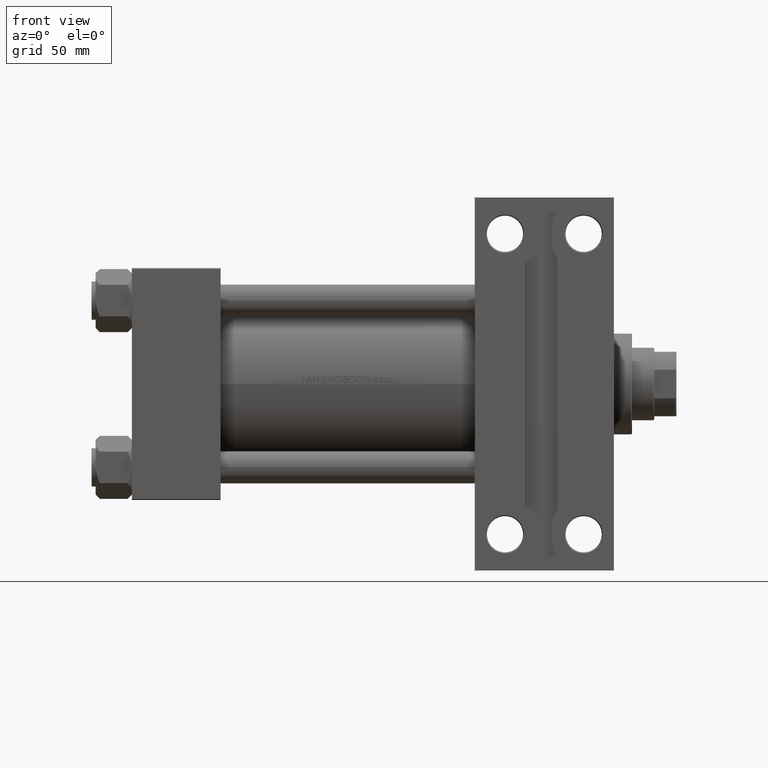
[diagram: clean part render]
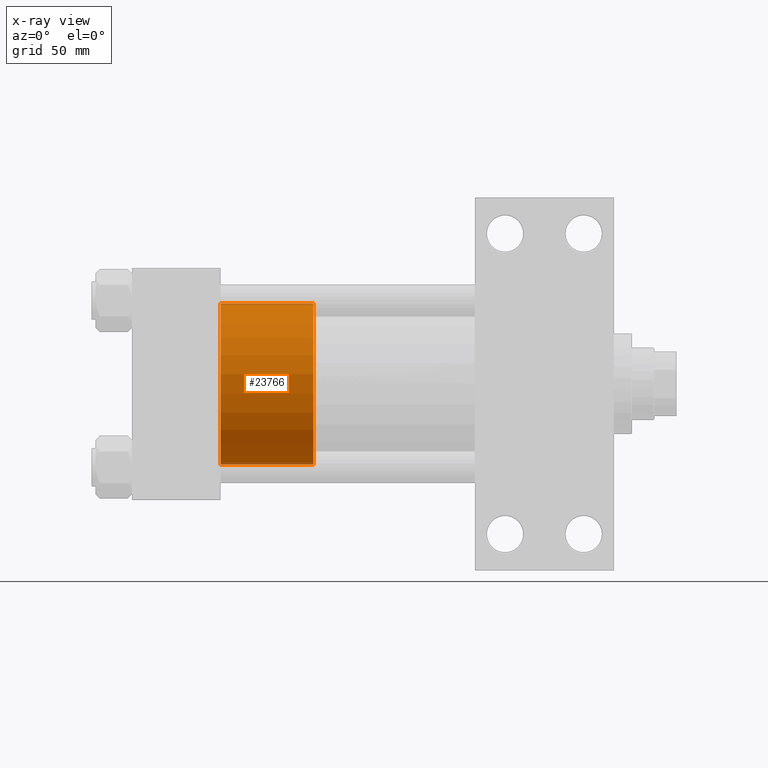
[diagram: x-ray — body ghosted, one internal face saturated and labeled with its STEP entity id]
A machine part, front view, then the same camera in x-ray: the body is ghosted and one INTERNAL B-rep face — a face not visible from any outside direction — is saturated and labeled: STEP entity #23766.
In plain terms, the highlighted cylindrical surface (partial cylindrical patch) has radius 40 mm, axis along (-1, 0, 0).
Its self-contained STEP definition (entity closure, byte-faithful):
#499 = DIRECTION ( 'NONE',  ( 0.000000000000000000, 0.000000000000000000, 1.000000000000000000 ) ) ;
#1212 = VERTEX_POINT ( 'NONE', #25308 ) ;
#2732 = CARTESIAN_POINT ( 'NONE',  ( 0.000000000000000000, 0.000000000000000000, 46.00000000000000000 ) ) ;
#4445 = CARTESIAN_POINT ( 'NONE',  ( 40.00000000000000000, 4.898587196589413026E-15, 46.00000000000000000 ) ) ;
#5518 = CARTESIAN_POINT ( 'NONE',  ( 40.00000000000000000, 4.898587196589413026E-15, 0.000000000000000000 ) ) ;
#6382 = FACE_OUTER_BOUND ( 'NONE', #18284, .T. ) ;
#7057 = EDGE_CURVE ( 'NONE', #15423, #14611, #19150, .T. ) ;
#8510 = CARTESIAN_POINT ( 'NONE',  ( -40.00000000000000000, 0.000000000000000000, 46.00000000000000000 ) ) ;
#13433 = VECTOR ( 'NONE', #22879, 1000.000000000000000 ) ;
#14434 = ORIENTED_EDGE ( 'NONE', *, *, #7057, .F. ) ;
#14611 = VERTEX_POINT ( 'NONE', #25271 ) ;
#14644 = EDGE_CURVE ( 'NONE', #37876, #1212, #29493, .T. ) ;
#14723 = AXIS2_PLACEMENT_3D ( 'NONE', #32341, #47172, #25033 ) ;
#14872 = ORIENTED_EDGE ( 'NONE', *, *, #36386, .F. ) ;
#15258 = AXIS2_PLACEMENT_3D ( 'NONE', #44526, #499, #15345 ) ;
#15345 = DIRECTION ( 'NONE',  ( 1.000000000000000000, 0.000000000000000000, 0.000000000000000000 ) ) ;
#15423 = VERTEX_POINT ( 'NONE', #4445 ) ;
#18284 = EDGE_LOOP ( 'NONE', ( #14434, #22180, #34092, #14872 ) ) ;
#19150 = CIRCLE ( 'NONE', #15258, 40.00000000000000000 ) ;
#20057 = EDGE_CURVE ( 'NONE', #15423, #37876, #44979, .T. ) ;
#20346 = AXIS2_PLACEMENT_3D ( 'NONE', #2732, #26497, #32420 ) ;
#22180 = ORIENTED_EDGE ( 'NONE', *, *, #20057, .T. ) ;
#22879 = DIRECTION ( 'NONE',  ( -0.000000000000000000, -0.000000000000000000, -1.000000000000000000 ) ) ;
#23766 = ADVANCED_FACE ( 'NONE', ( #6382 ), #47014, .T. ) ;
#25033 = DIRECTION ( 'NONE',  ( 1.000000000000000000, 0.000000000000000000, 0.000000000000000000 ) ) ;
#25271 = CARTESIAN_POINT ( 'NONE',  ( -40.00000000000000000, 0.000000000000000000, 46.00000000000000000 ) ) ;
#25308 = CARTESIAN_POINT ( 'NONE',  ( -40.00000000000000000, 0.000000000000000000, 0.000000000000000000 ) ) ;
#26497 = DIRECTION ( 'NONE',  ( -0.000000000000000000, -0.000000000000000000, -1.000000000000000000 ) ) ;
#29493 = CIRCLE ( 'NONE', #14723, 40.00000000000000000 ) ;
#32341 = CARTESIAN_POINT ( 'NONE',  ( 0.000000000000000000, 0.000000000000000000, 0.000000000000000000 ) ) ;
#32420 = DIRECTION ( 'NONE',  ( -1.000000000000000000, 0.000000000000000000, 0.000000000000000000 ) ) ;
#33440 = VECTOR ( 'NONE', #41090, 1000.000000000000000 ) ;
#34092 = ORIENTED_EDGE ( 'NONE', *, *, #14644, .T. ) ;
#36386 = EDGE_CURVE ( 'NONE', #14611, #1212, #41362, .T. ) ;
#37876 = VERTEX_POINT ( 'NONE', #5518 ) ;
#41090 = DIRECTION ( 'NONE',  ( -0.000000000000000000, -0.000000000000000000, -1.000000000000000000 ) ) ;
#41362 = LINE ( 'NONE', #8510, #13433 ) ;
#44526 = CARTESIAN_POINT ( 'NONE',  ( 0.000000000000000000, 0.000000000000000000, 46.00000000000000000 ) ) ;
#44733 = CARTESIAN_POINT ( 'NONE',  ( 40.00000000000000000, 4.898587196589413026E-15, 46.00000000000000000 ) ) ;
#44979 = LINE ( 'NONE', #44733, #33440 ) ;
#47014 = CYLINDRICAL_SURFACE ( 'NONE', #20346, 40.00000000000000000 ) ;
#47172 = DIRECTION ( 'NONE',  ( 0.000000000000000000, 0.000000000000000000, 1.000000000000000000 ) ) ;